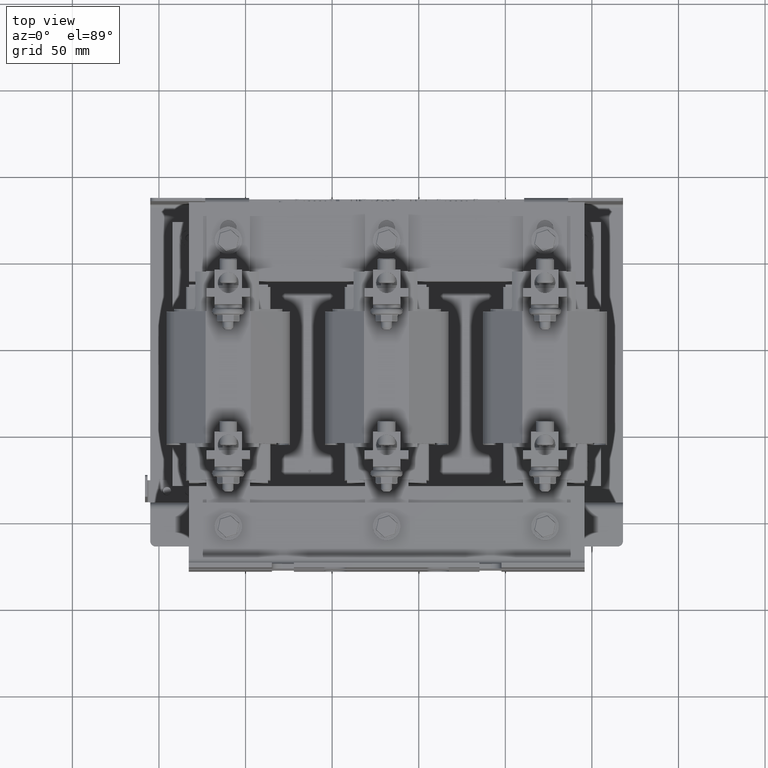
[diagram: clean part render]
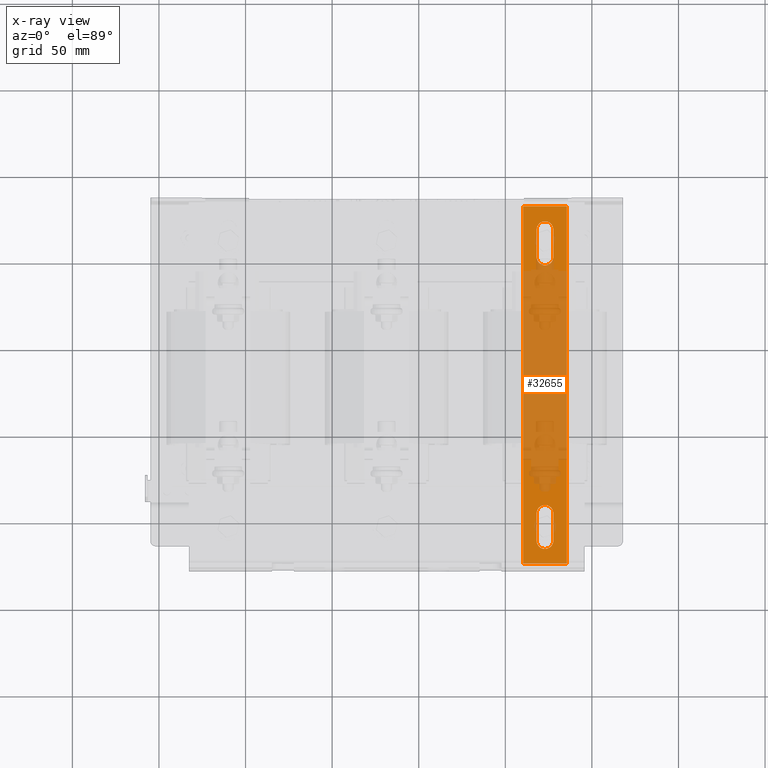
[diagram: x-ray — body ghosted, one internal face saturated and labeled with its STEP entity id]
A machine part, top view, then the same camera in x-ray: the body is ghosted and one INTERNAL B-rep face — a face not visible from any outside direction — is saturated and labeled: STEP entity #32655.
In plain terms, the highlighted planar face has unit normal (0, 0, -1).
Its self-contained STEP definition (entity closure, byte-faithful):
#1788=FACE_BOUND('',#6596,.T.);
#1789=FACE_BOUND('',#6597,.T.);
#2513=CIRCLE('',#35692,0.19);
#2516=CIRCLE('',#35696,0.19);
#2519=CIRCLE('',#35702,0.19);
#2520=CIRCLE('',#35705,0.19);
#4726=FACE_OUTER_BOUND('',#6595,.T.);
#6595=EDGE_LOOP('',(#27131,#27132,#27133,#27134));
#6596=EDGE_LOOP('',(#27135,#27136,#27137,#27138));
#6597=EDGE_LOOP('',(#27139,#27140,#27141,#27142));
#9472=LINE('',#54569,#12562);
#9482=LINE('',#54596,#12572);
#9485=LINE('',#54603,#12575);
#9486=LINE('',#54607,#12576);
#9487=LINE('',#54609,#12577);
#9488=LINE('',#54611,#12578);
#9489=LINE('',#54612,#12579);
#9490=LINE('',#54613,#12580);
#12562=VECTOR('',#42185,0.393700787401575);
#12572=VECTOR('',#42207,0.393700787401575);
#12575=VECTOR('',#42216,0.393700787401575);
#12576=VECTOR('',#42219,0.393700787401575);
#12577=VECTOR('',#42220,0.393700787401575);
#12578=VECTOR('',#42221,0.393700787401575);
#12579=VECTOR('',#42222,0.393700787401575);
#12580=VECTOR('',#42223,0.393700787401575);
#15566=VERTEX_POINT('',#54550);
#15567=VERTEX_POINT('',#54551);
#15572=VERTEX_POINT('',#54562);
#15573=VERTEX_POINT('',#54564);
#15582=VERTEX_POINT('',#54589);
#15583=VERTEX_POINT('',#54591);
#15584=VERTEX_POINT('',#54595);
#15585=VERTEX_POINT('',#54599);
#15586=VERTEX_POINT('',#54605);
#15587=VERTEX_POINT('',#54606);
#15588=VERTEX_POINT('',#54608);
#15589=VERTEX_POINT('',#54610);
#19574=EDGE_CURVE('',#15566,#15567,#2513,.T.);
#19580=EDGE_CURVE('',#15573,#15572,#2516,.T.);
#19583=EDGE_CURVE('',#15567,#15573,#9472,.T.);
#19594=EDGE_CURVE('',#15583,#15582,#2519,.T.);
#19596=EDGE_CURVE('',#15584,#15583,#9482,.T.);
#19598=EDGE_CURVE('',#15585,#15584,#2520,.T.);
#19600=EDGE_CURVE('',#15582,#15585,#9485,.T.);
#19601=EDGE_CURVE('',#15586,#15587,#9486,.T.);
#19602=EDGE_CURVE('',#15588,#15586,#9487,.T.);
#19603=EDGE_CURVE('',#15589,#15588,#9488,.T.);
#19604=EDGE_CURVE('',#15587,#15589,#9489,.T.);
#19605=EDGE_CURVE('',#15572,#15566,#9490,.T.);
#27131=ORIENTED_EDGE('',*,*,#19601,.F.);
#27132=ORIENTED_EDGE('',*,*,#19602,.F.);
#27133=ORIENTED_EDGE('',*,*,#19603,.F.);
#27134=ORIENTED_EDGE('',*,*,#19604,.F.);
#27135=ORIENTED_EDGE('',*,*,#19583,.T.);
#27136=ORIENTED_EDGE('',*,*,#19580,.T.);
#27137=ORIENTED_EDGE('',*,*,#19605,.T.);
#27138=ORIENTED_EDGE('',*,*,#19574,.T.);
#27139=ORIENTED_EDGE('',*,*,#19600,.T.);
#27140=ORIENTED_EDGE('',*,*,#19598,.T.);
#27141=ORIENTED_EDGE('',*,*,#19596,.T.);
#27142=ORIENTED_EDGE('',*,*,#19594,.T.);
#31169=PLANE('',#35707);
#32655=ADVANCED_FACE('',(#4726,#1788,#1789),#31169,.F.);
#35692=AXIS2_PLACEMENT_3D('',#54552,#42168,#42169);
#35696=AXIS2_PLACEMENT_3D('',#54565,#42179,#42180);
#35702=AXIS2_PLACEMENT_3D('',#54592,#42202,#42203);
#35705=AXIS2_PLACEMENT_3D('',#54600,#42211,#42212);
#35707=AXIS2_PLACEMENT_3D('',#54604,#42217,#42218);
#42168=DIRECTION('center_axis',(0.,0.,1.));
#42169=DIRECTION('ref_axis',(0.,1.,0.));
#42179=DIRECTION('center_axis',(0.,0.,1.));
#42180=DIRECTION('ref_axis',(0.,-1.,0.));
#42185=DIRECTION('',(1.,0.,0.));
#42202=DIRECTION('center_axis',(0.,0.,1.));
#42203=DIRECTION('ref_axis',(0.,1.,0.));
#42207=DIRECTION('',(-1.,5.63994424498428E-15,0.));
#42211=DIRECTION('center_axis',(0.,0.,1.));
#42212=DIRECTION('ref_axis',(0.,-1.,0.));
#42216=DIRECTION('',(1.,-5.74569319957773E-15,0.));
#42217=DIRECTION('center_axis',(0.,0.,1.));
#42218=DIRECTION('ref_axis',(1.,0.,0.));
#42219=DIRECTION('',(1.,0.,0.));
#42220=DIRECTION('',(0.,-1.,0.));
#42221=DIRECTION('',(-1.,0.,0.));
#42222=DIRECTION('',(0.,1.,0.));
#42223=DIRECTION('',(-1.,0.,0.));
#54550=CARTESIAN_POINT('',(5.87654806196653,0.476493589734272,-0.0625));
#54551=CARTESIAN_POINT('',(5.87654806196653,0.0964935897342718,-0.0625));
#54552=CARTESIAN_POINT('Origin',(5.87654806196653,0.286493589734272,-0.0625));
#54562=CARTESIAN_POINT('',(6.49654806196653,0.47649358973427,-0.0625));
#54564=CARTESIAN_POINT('',(6.49654806196653,0.09649358973427,-0.0625));
#54565=CARTESIAN_POINT('Origin',(6.49654806196653,0.28649358973427,-0.0625));
#54569=CARTESIAN_POINT('',(4.72529806196653,0.09649358973427,-0.0625));
#54589=CARTESIAN_POINT('',(-0.57345193803347,0.0964935897342718,-0.0625));
#54591=CARTESIAN_POINT('',(-0.57345193803347,0.476493589734272,-0.0625));
#54592=CARTESIAN_POINT('Origin',(-0.57345193803347,0.286493589734272,-0.0625));
#54595=CARTESIAN_POINT('',(0.0465480619665306,0.47649358973427,-0.0625));
#54596=CARTESIAN_POINT('',(1.34529806196653,0.476493589734263,-0.0625));
#54599=CARTESIAN_POINT('',(0.0465480619665306,0.09649358973427,-0.0625));
#54600=CARTESIAN_POINT('Origin',(0.0465480619665306,0.28649358973427,-0.0625));
#54603=CARTESIAN_POINT('',(1.50029806196653,0.0964935897342617,-0.0625));
#54604=CARTESIAN_POINT('Origin',(2.95404806196653,0.286493589734272,-0.0625));
#54605=CARTESIAN_POINT('',(-1.10845193803347,-0.211006410265728,-0.0625));
#54606=CARTESIAN_POINT('',(7.01654806196653,-0.211006410265728,-0.0625));
#54607=CARTESIAN_POINT('',(7.01654806196653,-0.211006410265728,-0.0625));
#54608=CARTESIAN_POINT('',(-1.10845193803347,0.783993589734273,-0.0625));
#54609=CARTESIAN_POINT('',(-1.10845193803347,-0.211006410265728,-0.0625));
#54610=CARTESIAN_POINT('',(7.01654806196653,0.783993589734273,-0.0625));
#54611=CARTESIAN_POINT('',(-1.10845193803347,0.783993589734273,-0.0625));
#54612=CARTESIAN_POINT('',(7.01654806196653,0.783993589734273,-0.0625));
#54613=CARTESIAN_POINT('',(4.57029806196653,0.47649358973427,-0.0625));